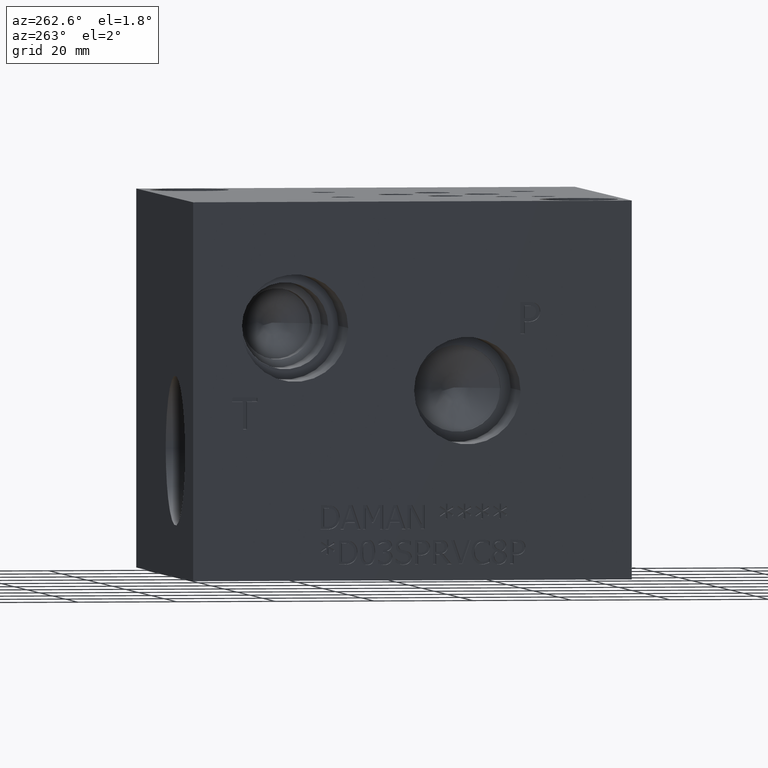
[diagram: clean part render]
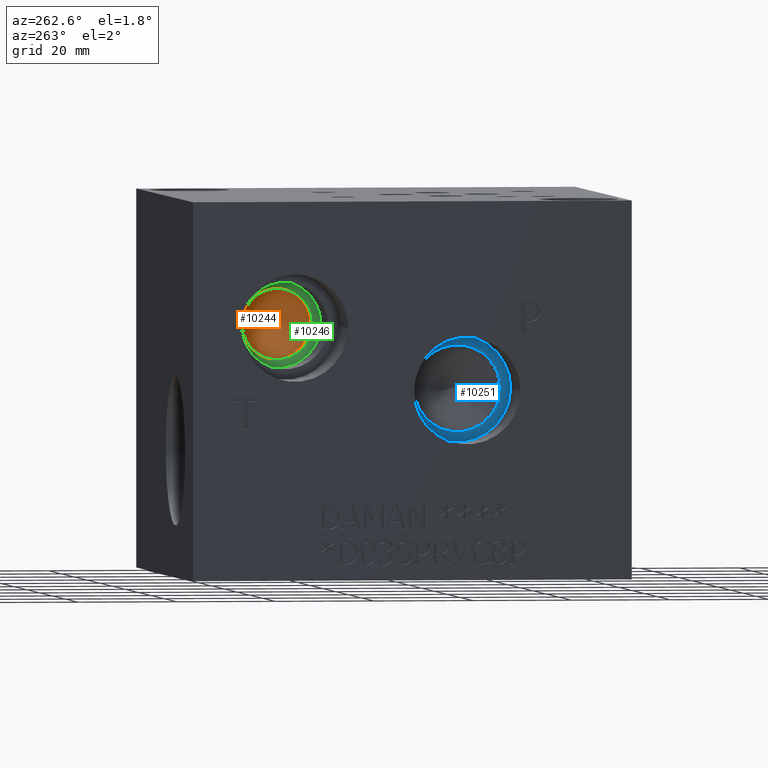
[diagram: same view with three faces highlighted in distinct colors, each labeled with its STEP entity id]
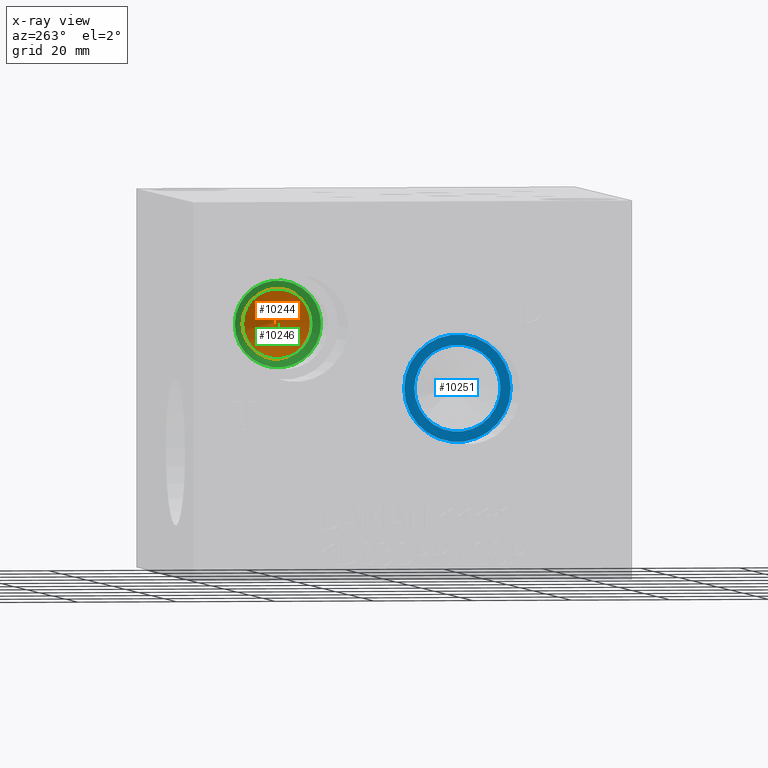
[diagram: x-ray of the same camera — body ghosted, the three highlighted faces saturated]
A machine part, auxiliary view with three faces highlighted in distinct colors.
The next image is the same camera in x-ray (body ghosted, the three faces saturated) — at least one of them is partly hidden behind the body in this view.
Their STEP definitions:

[orange] entity #10244 — the highlighted conical surface has half-angle 60 deg.
#54=CONICAL_SURFACE('',#10656,3.57505,1.0471975511966);
#99=CIRCLE('',#10657,7.1501);
#100=CIRCLE('',#10658,7.1501);
#1052=FACE_OUTER_BOUND('',#1628,.T.);
#1628=EDGE_LOOP('',(#8836,#8837,#8838,#8839));
#2648=LINE('',#17356,#3628);
#3628=VECTOR('',#12421,3.57505);
#4827=VERTEX_POINT('',#17352);
#4828=VERTEX_POINT('',#17353);
#4829=VERTEX_POINT('',#17355);
#6203=EDGE_CURVE('',#4827,#4828,#99,.T.);
#6204=EDGE_CURVE('',#4828,#4829,#2648,.T.);
#6205=EDGE_CURVE('',#4828,#4827,#100,.T.);
#8836=ORIENTED_EDGE('',*,*,#6203,.T.);
#8837=ORIENTED_EDGE('',*,*,#6204,.T.);
#8838=ORIENTED_EDGE('',*,*,#6204,.F.);
#8839=ORIENTED_EDGE('',*,*,#6205,.T.);
#10244=ADVANCED_FACE('',(#1052),#54,.F.);
#10656=AXIS2_PLACEMENT_3D('',#17351,#12417,#12418);
#10657=AXIS2_PLACEMENT_3D('',#17354,#12419,#12420);
#10658=AXIS2_PLACEMENT_3D('',#17357,#12422,#12423);
#12417=DIRECTION('center_axis',(-1.,0.,0.));
#12418=DIRECTION('ref_axis',(0.,1.,0.));
#12419=DIRECTION('center_axis',(-1.,0.,0.));
#12420=DIRECTION('ref_axis',(0.,1.,0.));
#12421=DIRECTION('',(0.5,0.866025403784439,-1.06057523872491E-16));
#12422=DIRECTION('center_axis',(-1.,0.,0.));
#12423=DIRECTION('ref_axis',(0.,1.,0.));
#17351=CARTESIAN_POINT('Origin',(33.8041160798664,68.2752,50.8));
#17352=CARTESIAN_POINT('',(31.74006,75.4253,50.8));
#17353=CARTESIAN_POINT('',(31.74006,61.1251,50.8));
#17354=CARTESIAN_POINT('Origin',(31.74006,68.2752,50.8));
#17355=CARTESIAN_POINT('',(35.8681721597328,68.2752,50.8));
#17356=CARTESIAN_POINT('',(33.8041160798664,64.70015,50.8));
#17357=CARTESIAN_POINT('Origin',(31.74006,68.2752,50.8));

[blue] entity #10251 — the highlighted planar face has unit normal (-1, 0, 0).
#109=CIRCLE('',#10674,10.795);
#110=CIRCLE('',#10675,10.795);
#111=CIRCLE('',#10676,8.7376);
#264=FACE_BOUND('',#1637,.T.);
#583=PLANE('',#10673);
#1059=FACE_OUTER_BOUND('',#1636,.T.);
#1636=EDGE_LOOP('',(#8868,#8869));
#1637=EDGE_LOOP('',(#8870));
#4839=VERTEX_POINT('',#17387);
#4840=VERTEX_POINT('',#17388);
#4841=VERTEX_POINT('',#17391);
#6219=EDGE_CURVE('',#4839,#4840,#109,.T.);
#6220=EDGE_CURVE('',#4840,#4839,#110,.T.);
#6221=EDGE_CURVE('',#4841,#4841,#111,.T.);
#8868=ORIENTED_EDGE('',*,*,#6219,.T.);
#8869=ORIENTED_EDGE('',*,*,#6220,.T.);
#8870=ORIENTED_EDGE('',*,*,#6221,.F.);
#10251=ADVANCED_FACE('',(#1059,#264),#583,.T.);
#10673=AXIS2_PLACEMENT_3D('',#17386,#12457,#12458);
#10674=AXIS2_PLACEMENT_3D('',#17389,#12459,#12460);
#10675=AXIS2_PLACEMENT_3D('',#17390,#12461,#12462);
#10676=AXIS2_PLACEMENT_3D('',#17392,#12463,#12464);
#12457=DIRECTION('center_axis',(-1.,0.,0.));
#12458=DIRECTION('ref_axis',(0.,1.,0.));
#12459=DIRECTION('center_axis',(-1.,0.,0.));
#12460=DIRECTION('ref_axis',(0.,1.,0.));
#12461=DIRECTION('center_axis',(-1.,0.,0.));
#12462=DIRECTION('ref_axis',(0.,1.,0.));
#12463=DIRECTION('center_axis',(-1.,0.,0.));
#12464=DIRECTION('ref_axis',(0.,1.,0.));
#17386=CARTESIAN_POINT('Origin',(15.367,33.3502,38.1));
#17387=CARTESIAN_POINT('',(15.367,44.1452,38.1));
#17388=CARTESIAN_POINT('',(15.367,22.5552,38.1));
#17389=CARTESIAN_POINT('Origin',(15.367,33.3502,38.1));
#17390=CARTESIAN_POINT('Origin',(15.367,33.3502,38.1));
#17391=CARTESIAN_POINT('',(15.367,24.6126,38.1));
#17392=CARTESIAN_POINT('Origin',(15.367,33.3502,38.1));

[green] entity #10246 — the highlighted conical surface has half-angle 60 deg.
#55=CONICAL_SURFACE('',#10661,4.3688,1.0471975511966);
#101=CIRCLE('',#10660,7.1501);
#102=CIRCLE('',#10662,8.7376);
#103=CIRCLE('',#10663,8.7376);
#1054=FACE_OUTER_BOUND('',#1630,.T.);
#1630=EDGE_LOOP('',(#8845,#8846,#8847,#8848,#8849));
#2650=LINE('',#17366,#3630);
#3630=VECTOR('',#12433,4.3688);
#4830=VERTEX_POINT('',#17359);
#4831=VERTEX_POINT('',#17363);
#4832=VERTEX_POINT('',#17364);
#6206=EDGE_CURVE('',#4830,#4830,#101,.T.);
#6208=EDGE_CURVE('',#4831,#4832,#102,.T.);
#6209=EDGE_CURVE('',#4832,#4830,#2650,.T.);
#6210=EDGE_CURVE('',#4832,#4831,#103,.T.);
#8845=ORIENTED_EDGE('',*,*,#6208,.T.);
#8846=ORIENTED_EDGE('',*,*,#6209,.T.);
#8847=ORIENTED_EDGE('',*,*,#6206,.T.);
#8848=ORIENTED_EDGE('',*,*,#6209,.F.);
#8849=ORIENTED_EDGE('',*,*,#6210,.T.);
#10246=ADVANCED_FACE('',(#1054),#55,.F.);
#10660=AXIS2_PLACEMENT_3D('',#17360,#12426,#12427);
#10661=AXIS2_PLACEMENT_3D('',#17362,#12429,#12430);
#10662=AXIS2_PLACEMENT_3D('',#17365,#12431,#12432);
#10663=AXIS2_PLACEMENT_3D('',#17367,#12434,#12435);
#12426=DIRECTION('center_axis',(1.,0.,0.));
#12427=DIRECTION('ref_axis',(0.,1.,0.));
#12429=DIRECTION('center_axis',(-1.,0.,0.));
#12430=DIRECTION('ref_axis',(0.,1.,0.));
#12431=DIRECTION('center_axis',(-1.,0.,0.));
#12432=DIRECTION('ref_axis',(0.,1.,0.));
#12433=DIRECTION('',(0.5,0.866025403784439,-1.06057523872491E-16));
#12434=DIRECTION('center_axis',(-1.,0.,0.));
#12435=DIRECTION('ref_axis',(0.,1.,0.));
#17359=CARTESIAN_POINT('',(27.6119435523385,61.1251,50.8));
#17360=CARTESIAN_POINT('Origin',(27.6119435523385,68.2752,50.8));
#17362=CARTESIAN_POINT('Origin',(29.2177278560356,68.2752,50.8));
#17363=CARTESIAN_POINT('',(26.6954,77.0128,50.8));
#17364=CARTESIAN_POINT('',(26.6954,59.5376,50.8));
#17365=CARTESIAN_POINT('Origin',(26.6954,68.2752,50.8));
#17366=CARTESIAN_POINT('',(29.2177278560356,63.9064,50.8));
#17367=CARTESIAN_POINT('Origin',(26.6954,68.2752,50.8));